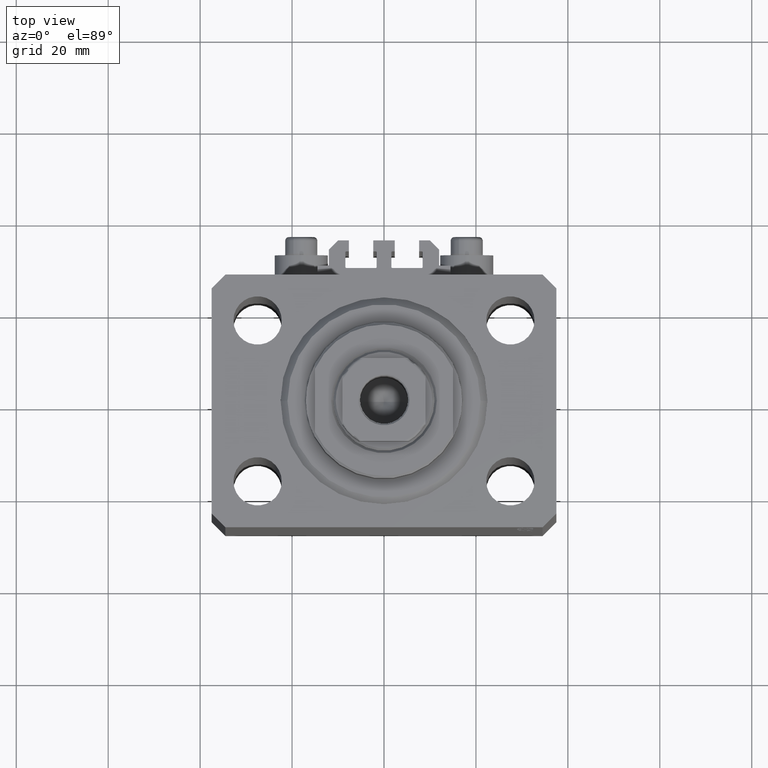
[diagram: clean part render]
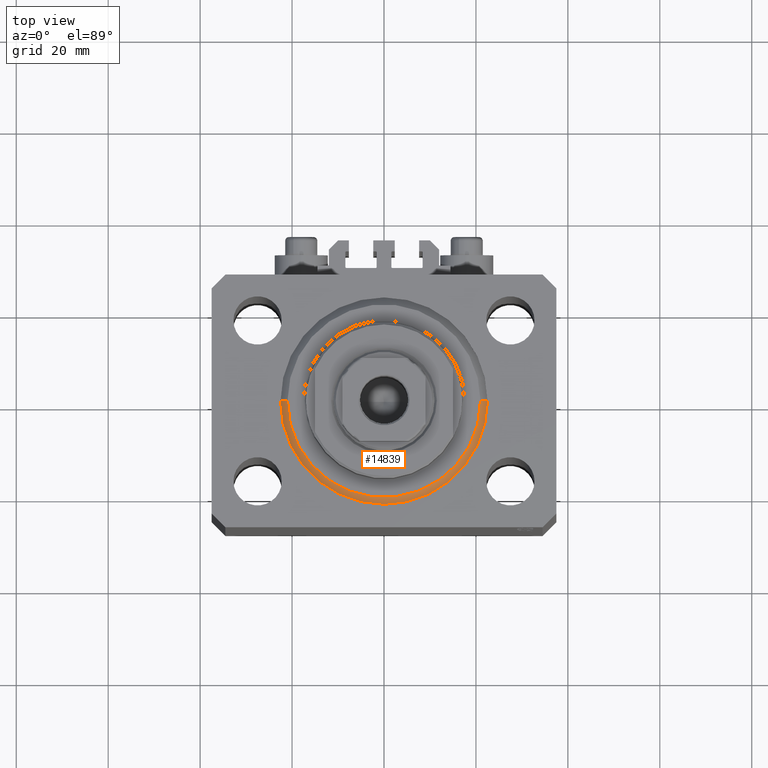
[diagram: same view with one face highlighted and labeled with its STEP entity id]
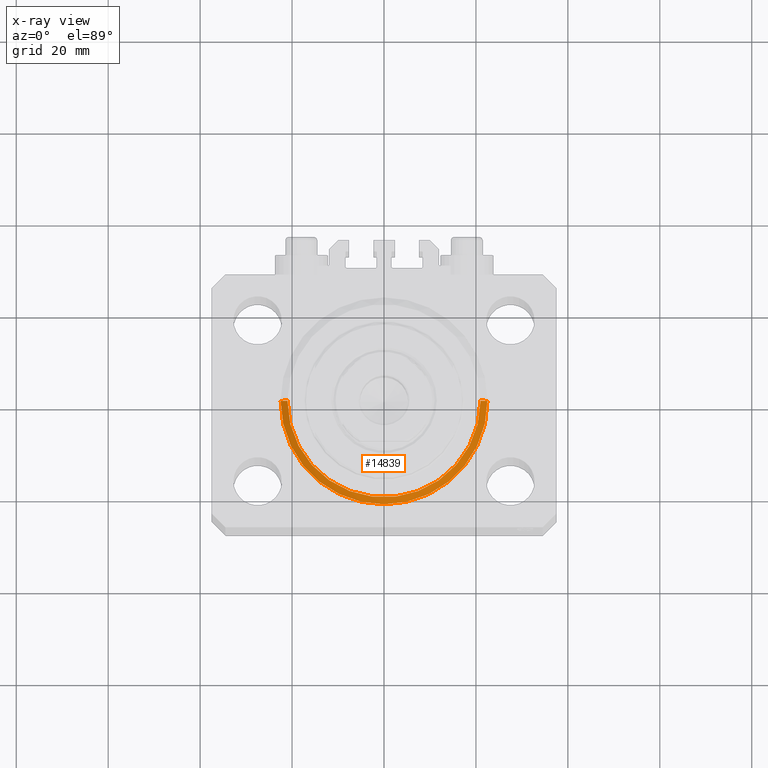
[diagram: x-ray of the same camera — body ghosted, the highlighted face saturated]
A machine part, top view. The second image highlights one B-rep face of the part: STEP entity #14839.
The next image is the same camera in x-ray: the body ghosted, the highlighted face saturated — about 0% of this face is hidden behind the body in this view.
In plain terms, the highlighted conical surface has half-angle 45 deg.
Its self-contained STEP definition (entity closure, byte-faithful):
#450 = DIRECTION ( 'NONE',  ( 1.000000000000000000, 0.000000000000000000, 0.000000000000000000 ) ) ;
#684 = DIRECTION ( 'NONE',  ( -0.000000000000000000, -0.000000000000000000, 1.000000000000000000 ) ) ;
#710 = ORIENTED_EDGE ( 'NONE', *, *, #24029, .F. ) ;
#737 = EDGE_LOOP ( 'NONE', ( #38426, #46231, #33029, #710 ) ) ;
#2550 = CIRCLE ( 'NONE', #4856, 22.50000000000000355 ) ;
#3749 = VECTOR ( 'NONE', #37392, 1000.000000000000114 ) ;
#4262 = DIRECTION ( 'NONE',  ( 0.7071067811865500152, 0.000000000000000000, 0.7071067811865451302 ) ) ;
#4686 = CONICAL_SURFACE ( 'NONE', #23022, 22.50000000000000355, 0.7853981633974517207 ) ;
#4856 = AXIS2_PLACEMENT_3D ( 'NONE', #18403, #684, #450 ) ;
#5034 = DIRECTION ( 'NONE',  ( 1.000000000000000000, 0.000000000000000000, 0.000000000000000000 ) ) ;
#6514 = VERTEX_POINT ( 'NONE', #34171 ) ;
#9549 = DIRECTION ( 'NONE',  ( 1.000000000000000000, 0.000000000000000000, 0.000000000000000000 ) ) ;
#14839 = ADVANCED_FACE ( 'NONE', ( #31582 ), #4686, .T. ) ;
#15247 = CIRCLE ( 'NONE', #43551, 20.99999999999995381 ) ;
#15251 = CARTESIAN_POINT ( 'NONE',  ( 22.50000000000000355, 0.000000000000000000, 1.500000000000039524 ) ) ;
#17459 = DIRECTION ( 'NONE',  ( -0.000000000000000000, -0.000000000000000000, 1.000000000000000000 ) ) ;
#18143 = VERTEX_POINT ( 'NONE', #46597 ) ;
#18403 = CARTESIAN_POINT ( 'NONE',  ( 0.000000000000000000, 0.000000000000000000, 1.500000000000039524 ) ) ;
#19174 = DIRECTION ( 'NONE',  ( -0.000000000000000000, -0.000000000000000000, -1.000000000000000000 ) ) ;
#21572 = EDGE_CURVE ( 'NONE', #6514, #18143, #15247, .T. ) ;
#23022 = AXIS2_PLACEMENT_3D ( 'NONE', #36125, #17459, #9549 ) ;
#24029 = EDGE_CURVE ( 'NONE', #24519, #32956, #2550, .T. ) ;
#24519 = VERTEX_POINT ( 'NONE', #25590 ) ;
#24988 = VECTOR ( 'NONE', #4262, 1000.000000000000114 ) ;
#25590 = CARTESIAN_POINT ( 'NONE',  ( -22.50000000000000355, 0.000000000000000000, 1.500000000000039524 ) ) ;
#26369 = LINE ( 'NONE', #44335, #3749 ) ;
#29393 = LINE ( 'NONE', #15251, #24988 ) ;
#31340 = CARTESIAN_POINT ( 'NONE',  ( 22.50000000000000355, 2.755455298081544383E-15, 1.500000000000039524 ) ) ;
#31582 = FACE_OUTER_BOUND ( 'NONE', #737, .T. ) ;
#32956 = VERTEX_POINT ( 'NONE', #31340 ) ;
#33029 = ORIENTED_EDGE ( 'NONE', *, *, #38183, .T. ) ;
#34171 = CARTESIAN_POINT ( 'NONE',  ( 20.99999999999995381, 0.000000000000000000, 0.000000000000000000 ) ) ;
#36125 = CARTESIAN_POINT ( 'NONE',  ( 0.000000000000000000, 0.000000000000000000, 1.500000000000039524 ) ) ;
#37392 = DIRECTION ( 'NONE',  ( -0.7071067811865500152, 8.659560562354962440E-17, 0.7071067811865451302 ) ) ;
#37601 = CARTESIAN_POINT ( 'NONE',  ( 0.000000000000000000, 0.000000000000000000, 0.000000000000000000 ) ) ;
#38183 = EDGE_CURVE ( 'NONE', #6514, #32956, #29393, .T. ) ;
#38426 = ORIENTED_EDGE ( 'NONE', *, *, #42225, .F. ) ;
#42225 = EDGE_CURVE ( 'NONE', #18143, #24519, #26369, .T. ) ;
#43551 = AXIS2_PLACEMENT_3D ( 'NONE', #37601, #19174, #5034 ) ;
#44335 = CARTESIAN_POINT ( 'NONE',  ( -22.50000000000000355, 2.755455298081545172E-15, 1.500000000000039524 ) ) ;
#46231 = ORIENTED_EDGE ( 'NONE', *, *, #21572, .F. ) ;
#46597 = CARTESIAN_POINT ( 'NONE',  ( -20.99999999999995381, 2.663606788145490261E-15, 0.000000000000000000 ) ) ;